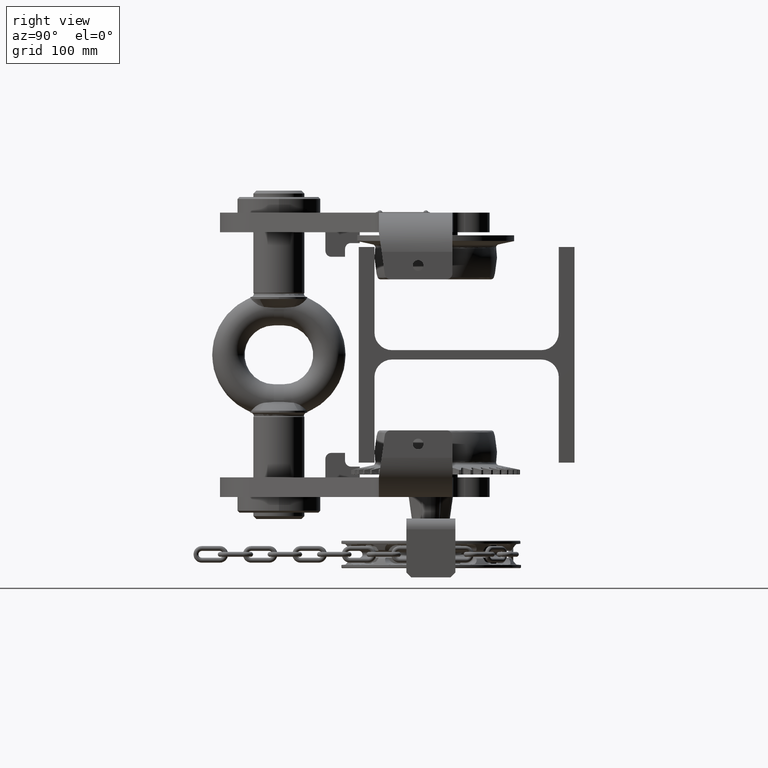
[diagram: clean part render]
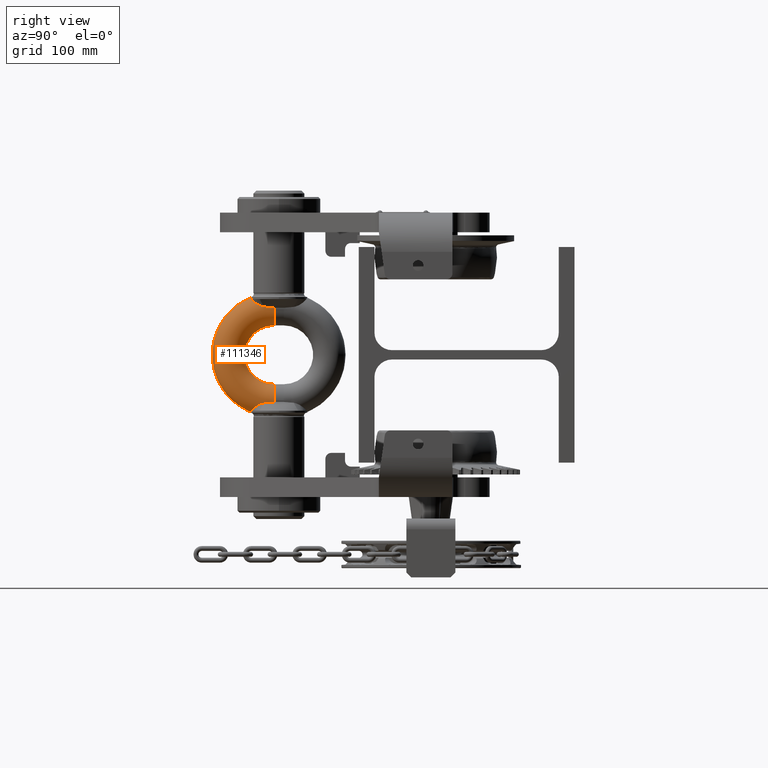
[diagram: same view with one face highlighted and labeled with its STEP entity id]
A machine part, right view. The second image highlights one B-rep face of the part: STEP entity #111346.
In plain terms, the highlighted toroidal blend (fillet) surface has major radius 46.5 mm and minor (blend) radius 16.5 mm.
Its self-contained STEP definition (entity closure, byte-faithful):
#397 = CARTESIAN_POINT ( 'NONE',  ( 6.789701822044540000, -219.6939700852458100, 57.00000000000000000 ) ) ;
#1459 = CARTESIAN_POINT ( 'NONE',  ( 12.62039186310735900, -216.2968772376512200, -53.59638425016680000 ) ) ;
#1618 = CARTESIAN_POINT ( 'NONE',  ( 16.14970968157156900, -206.5730623694667000, -48.85419018527893100 ) ) ;
#2364 = CIRCLE ( 'NONE', #18702, 16.50000000000005000 ) ;
#3519 = CIRCLE ( 'NONE', #89164, 16.50000000000005000 ) ;
#3927 = DIRECTION ( 'NONE',  ( -1.000000000000000000, -2.310146638513944900E-032, 6.939431567305113600E-017 ) ) ;
#4234 = DIRECTION ( 'NONE',  ( -1.000000000000000000, 0.0000000000000000000, 0.0000000000000000000 ) ) ;
#4261 = DIRECTION ( 'NONE',  ( -1.000000000000000000, 0.0000000000000000000, 0.0000000000000000000 ) ) ;
#4678 = DIRECTION ( 'NONE',  ( -9.545527190486497700E-031, 1.000000000000000000, -1.414387360566586700E-014 ) ) ;
#4987 = CARTESIAN_POINT ( 'NONE',  ( 16.14970968157156900, -206.5730623694667000, -48.85419018527893100 ) ) ;
#5476 = CARTESIAN_POINT ( 'NONE',  ( 8.226983262885923400, -219.2627356857551600, 56.40426757459353300 ) ) ;
#5749 = CARTESIAN_POINT ( 'NONE',  ( 2.222275844469823600E-014, -196.4999999999986100, 46.50000000000000000 ) ) ;
#5967 = CARTESIAN_POINT ( 'NONE',  ( 1.576908708710450200E-014, -196.5000000000005700, -46.50000000000000000 ) ) ;
#7451 = CARTESIAN_POINT ( 'NONE',  ( 16.33325860116093900, -203.2304775282657700, 48.42271561141745200 ) ) ;
#8414 = CARTESIAN_POINT ( 'NONE',  ( 16.27217791761420100, -204.9057744790298200, -48.60082342732089000 ) ) ;
#8582 = B_SPLINE_CURVE_WITH_KNOTS ( 'NONE', 3,
 ( #110987, #81446, #112276, #121083, #40117, #50183, #10243, #80588 ),
 .UNSPECIFIED., .F., .F.,
 ( 4, 2, 2, 4 ),
 ( 0.006967397322768841300, 0.01044571445054810800, 0.01218487301443774200, 0.01392403157832737400 ),
 .UNSPECIFIED. ) ;
#9958 = VERTEX_POINT ( 'NONE', #46893 ) ;
#10108 = CARTESIAN_POINT ( 'NONE',  ( 1.162611234090074900, -220.5000000000002000, 58.24946351684271000 ) ) ;
#10243 = CARTESIAN_POINT ( 'NONE',  ( 6.255083864237603200, -219.8227173496876500, -57.20820648636495800 ) ) ;
#10301 = CARTESIAN_POINT ( 'NONE',  ( 16.14970968157157600, -206.5730623694667000, 48.85419018527901600 ) ) ;
#11367 = AXIS2_PLACEMENT_3D ( 'NONE', #64404, #53482, #4261 ) ;
#11575 = CARTESIAN_POINT ( 'NONE',  ( 15.52368704440476500, -210.7567778237649900, -50.11044335773171800 ) ) ;
#12044 = DIRECTION ( 'NONE',  ( -6.939431567305113600E-017, 5.649753126399392400E-064, -1.000000000000000000 ) ) ;
#12420 = B_SPLINE_CURVE_WITH_KNOTS ( 'NONE', 3,
 ( #70226, #10108, #51330, #60574, #20611, #90580, #40824, #397 ),
 .UNSPECIFIED., .F., .F.,
 ( 4, 2, 2, 4 ),
 ( 0.006967397322768840500, 0.01044571445054811300, 0.01218487301443774700, 0.01392403157832738200 ),
 .UNSPECIFIED. ) ;
#12696 = VERTEX_POINT ( 'NONE', #56806 ) ;
#12743 = CARTESIAN_POINT ( 'NONE',  ( 6.789701822044540000, -219.6939700852458100, 57.00000000000000000 ) ) ;
#15188 = CARTESIAN_POINT ( 'NONE',  ( 15.52239812837072500, -210.7618931237415700, 50.11268272700755900 ) ) ;
#15625 = CARTESIAN_POINT ( 'NONE',  ( 15.76393853991892000, -209.6594500412759300, 49.66678633498652600 ) ) ;
#16344 = ORIENTED_EDGE ( 'NONE', *, *, #27997, .T. ) ;
#16490 = CARTESIAN_POINT ( 'NONE',  ( 16.09073594290879300, -207.3741769979857300, 48.97655935730085000 ) ) ;
#18702 = AXIS2_PLACEMENT_3D ( 'NONE', #60788, #71314, #21281 ) ;
#20611 = CARTESIAN_POINT ( 'NONE',  ( 4.599352381570168900, -220.1385134003766700, 57.70260742488639500 ) ) ;
#21281 = DIRECTION ( 'NONE',  ( -1.000000000000000000, 0.0000000000000000000, 0.0000000000000000000 ) ) ;
#22103 = CARTESIAN_POINT ( 'NONE',  ( 15.83172462128895200, -209.2840947546193000, -49.53129400317465800 ) ) ;
#22549 = CARTESIAN_POINT ( 'NONE',  ( 15.76447316238311900, -209.6565579584139100, -49.66572867952372400 ) ) ;
#22595 = CARTESIAN_POINT ( 'NONE',  ( 1.899592276590135800E-014, -196.4999999999999100, 2.774178518932936600E-016 ) ) ;
#23211 = AXIS2_PLACEMENT_3D ( 'NONE', #109486, #86184, #127496 ) ;
#23411 = EDGE_CURVE ( 'NONE', #57007, #96964, #25737, .T. ) ;
#25054 = EDGE_CURVE ( 'NONE', #35068, #109104, #62057, .T. ) ;
#25327 = ORIENTED_EDGE ( 'NONE', *, *, #94996, .T. ) ;
#25540 = ORIENTED_EDGE ( 'NONE', *, *, #129441, .F. ) ;
#25691 = CARTESIAN_POINT ( 'NONE',  ( 16.14970968157157600, -206.5730623694667000, 48.85419018527901600 ) ) ;
#25695 = ORIENTED_EDGE ( 'NONE', *, *, #64427, .F. ) ;
#25737 = B_SPLINE_CURVE_WITH_KNOTS ( 'NONE', 3,
 ( #25691, #16490, #55131, #46263, #15625, #116772, #15188, #96464, #36620, #107015, #45405, #36181, #95615, #85560, #55543, #86833, #46682, #117217, #45845, #56818, #65613, #5476, #35345, #105709 ),
 .UNSPECIFIED., .F., .F.,
 ( 4, 2, 2, 2, 2, 2, 2, 2, 2, 2, 2, 4 ),
 ( 2.881939084222627100E-017, 0.002409449002536025300, 0.003614173503804025000, 0.004818898005072023800, 0.007228347007607941600, 0.008433071508875901800, 0.009637796010143860300, 0.01204724501267983800, 0.01325196951394783300, 0.01445669401521582400, 0.01686614301775181100, 0.01927559202028780000 ),
 .UNSPECIFIED. ) ;
#27214 = DIRECTION ( 'NONE',  ( 1.932206904482438600E-030, -1.000000000000000000, 2.823226364095309500E-014 ) ) ;
#27997 = EDGE_CURVE ( 'NONE', #109104, #57007, #84660, .T. ) ;
#28024 = VERTEX_POINT ( 'NONE', #78234 ) ;
#30471 = CARTESIAN_POINT ( 'NONE',  ( 13.51089859848828200, -215.2638977733029700, -52.73977358315003300 ) ) ;
#31331 = CARTESIAN_POINT ( 'NONE',  ( 11.34520208129740100, -217.4414516651685300, -54.62953950804496400 ) ) ;
#33155 = ORIENTED_EDGE ( 'NONE', *, *, #41522, .T. ) ;
#35068 = VERTEX_POINT ( 'NONE', #77503 ) ;
#35345 = CARTESIAN_POINT ( 'NONE',  ( 7.531583063176368500, -219.5201620654329100, 56.70910042947637200 ) ) ;
#36181 = CARTESIAN_POINT ( 'NONE',  ( 14.08090010373163600, -214.4107620654677600, 52.11621288737714500 ) ) ;
#36620 = CARTESIAN_POINT ( 'NONE',  ( 14.99815633690425400, -212.5137042511241800, 50.95146419734150800 ) ) ;
#39714 = CARTESIAN_POINT ( 'NONE',  ( 8.228052558569491000, -219.2625594879943100, -56.40392126491678200 ) ) ;
#40117 = CARTESIAN_POINT ( 'NONE',  ( 4.599352381570157400, -220.1385134003766700, -57.70260742488640900 ) ) ;
#40824 = CARTESIAN_POINT ( 'NONE',  ( 6.255083864237619200, -219.8227173496875400, 57.20820648636495800 ) ) ;
#41522 = EDGE_CURVE ( 'NONE', #95460, #28024, #8582, .T. ) ;
#44301 = CARTESIAN_POINT ( 'NONE',  ( 1.899592276590135800E-014, -196.4999999999999100, 2.774178518932936600E-016 ) ) ;
#45405 = CARTESIAN_POINT ( 'NONE',  ( 14.41843490700067100, -213.7997126900800700, 51.71288681910630200 ) ) ;
#45845 = CARTESIAN_POINT ( 'NONE',  ( 11.04097899882745400, -217.6549622679523800, 54.82810784448079000 ) ) ;
#46263 = CARTESIAN_POINT ( 'NONE',  ( 15.83134933537299800, -209.2863289760059300, 49.53205681885103900 ) ) ;
#46682 = CARTESIAN_POINT ( 'NONE',  ( 11.86317710511407100, -217.0009010043096400, 54.22865603293378500 ) ) ;
#46893 = CARTESIAN_POINT ( 'NONE',  ( 16.50000000000001800, -196.5000000000005700, -46.49999999999995700 ) ) ;
#48807 = ORIENTED_EDGE ( 'NONE', *, *, #94632, .T. ) ;
#50183 = CARTESIAN_POINT ( 'NONE',  ( 5.710080908976377300, -219.9378878984772400, -57.39001116515129300 ) ) ;
#50916 = B_SPLINE_CURVE_WITH_KNOTS ( 'NONE', 3,
 ( #57601, #8414, #77483, #89375, #119303, #87627 ),
 .UNSPECIFIED., .F., .F.,
 ( 4, 2, 4 ),
 ( 0.0000000000000000000, 0.005056082113876760400, 0.01011216422775352100 ),
 .UNSPECIFIED. ) ;
#51330 = CARTESIAN_POINT ( 'NONE',  ( 2.315721349619341800, -220.4303277780988700, 58.14676997551407600 ) ) ;
#53482 = DIRECTION ( 'NONE',  ( 1.932206904482438600E-030, -1.000000000000000000, 2.823226364095309500E-014 ) ) ;
#55131 = CARTESIAN_POINT ( 'NONE',  ( 16.00775697945102700, -208.1516179651799000, 49.16671881102173100 ) ) ;
#55543 = CARTESIAN_POINT ( 'NONE',  ( 12.86108947759753300, -216.0671371026020300, 53.39142813885421600 ) ) ;
#56041 = AXIS2_PLACEMENT_3D ( 'NONE', #44301, #3927, #86129 ) ;
#56229 = CARTESIAN_POINT ( 'NONE',  ( 16.41022114154717200, -199.8710428577474800, 48.15709499626949300 ) ) ;
#56806 = CARTESIAN_POINT ( 'NONE',  ( 2.303810443280035300E-014, -220.5000000000001400, 58.24946351684270200 ) ) ;
#56818 = CARTESIAN_POINT ( 'NONE',  ( 10.16253130831773500, -218.2683548030102300, 55.39900076942999600 ) ) ;
#57007 = VERTEX_POINT ( 'NONE', #10301 ) ;
#57362 = CARTESIAN_POINT ( 'NONE',  ( 1.495374111465345200E-014, -220.5000000000001400, -58.24946351684270200 ) ) ;
#57601 = CARTESIAN_POINT ( 'NONE',  ( 16.14970968157156900, -206.5730623694667000, -48.85419018527893100 ) ) ;
#59877 = CARTESIAN_POINT ( 'NONE',  ( 6.789701822044479600, -219.6939700852455800, -57.00000000000000000 ) ) ;
#59893 = VERTEX_POINT ( 'NONE', #1618 ) ;
#60428 = EDGE_CURVE ( 'NONE', #28024, #59893, #108583, .T. ) ;
#60574 = CARTESIAN_POINT ( 'NONE',  ( 4.030948684565530000, -220.2242590919545600, 57.83382278780548100 ) ) ;
#60788 = CARTESIAN_POINT ( 'NONE',  ( 1.576908708710450200E-014, -196.5000000000005700, -46.50000000000000000 ) ) ;
#62057 = CIRCLE ( 'NONE', #11367, 16.50000000000005000 ) ;
#64058 = EDGE_CURVE ( 'NONE', #9958, #94991, #117488, .T. ) ;
#64404 = CARTESIAN_POINT ( 'NONE',  ( 2.222275844469823600E-014, -196.4999999999986100, 46.50000000000000000 ) ) ;
#64427 = EDGE_CURVE ( 'NONE', #123648, #9958, #2364, .T. ) ;
#65545 = CARTESIAN_POINT ( 'NONE',  ( 16.00779564519321600, -208.1510085656619800, -49.16660984428261800 ) ) ;
#65613 = CARTESIAN_POINT ( 'NONE',  ( 9.542474760975427000, -218.6366440345708500, 55.74942739138110400 ) ) ;
#66682 = CARTESIAN_POINT ( 'NONE',  ( 16.43063562197325200, -196.5000000000005700, -48.01136132607175700 ) ) ;
#68040 = CARTESIAN_POINT ( 'NONE',  ( 16.27217791761426100, -204.9057744790295600, 48.60082342732089000 ) ) ;
#70226 = CARTESIAN_POINT ( 'NONE',  ( 2.303810443280035300E-014, -220.5000000000001400, 58.24946351684270200 ) ) ;
#70412 = CARTESIAN_POINT ( 'NONE',  ( 10.47097514471096100, -218.0534991549014300, -55.19895987007701900 ) ) ;
#71314 = DIRECTION ( 'NONE',  ( -9.545527190486497700E-031, 1.000000000000000000, -1.414387360566586700E-014 ) ) ;
#71721 = CARTESIAN_POINT ( 'NONE',  ( 13.29989869337613800, -215.5356464809469800, -52.95500724111310100 ) ) ;
#72155 = VERTEX_POINT ( 'NONE', #98378 ) ;
#77483 = CARTESIAN_POINT ( 'NONE',  ( 16.33325860116091000, -203.2304775282663600, -48.42271561141744500 ) ) ;
#77503 = CARTESIAN_POINT ( 'NONE',  ( 16.50000000000002100, -196.4999999999986100, 46.50000000000004300 ) ) ;
#77515 = EDGE_LOOP ( 'NONE', ( #25540, #33155, #116720, #48807, #84040, #25695, #25327, #119535, #124004, #16344, #106905, #87448 ) ) ;
#78234 = CARTESIAN_POINT ( 'NONE',  ( 6.789701822044479600, -219.6939700852455800, -57.00000000000000000 ) ) ;
#80588 = CARTESIAN_POINT ( 'NONE',  ( 6.789701822044479600, -219.6939700852455800, -57.00000000000000000 ) ) ;
#80630 = CARTESIAN_POINT ( 'NONE',  ( 11.88198488525443400, -217.0037736557662200, -54.22649970755972500 ) ) ;
#81446 = CARTESIAN_POINT ( 'NONE',  ( 1.162611234090066300, -220.5000000000002000, -58.24946351684271000 ) ) ;
#81484 = CARTESIAN_POINT ( 'NONE',  ( 9.541050357058100700, -218.6182330936537700, -55.73941017199114600 ) ) ;
#81925 = CARTESIAN_POINT ( 'NONE',  ( 15.03840813540673700, -212.5426066188140600, -50.92307947960818400 ) ) ;
#82804 = CARTESIAN_POINT ( 'NONE',  ( 15.61060803828191500, -210.3922853047753300, -49.95506384522680300 ) ) ;
#83496 = TOROIDAL_SURFACE ( 'NONE', #123202, 46.50000000000000000, 16.50000000000000000 ) ;
#83719 = DIRECTION ( 'NONE',  ( -1.000000000000000000, -2.310146638513944900E-032, 6.939431567305113600E-017 ) ) ;
#84040 = ORIENTED_EDGE ( 'NONE', *, *, #64058, .F. ) ;
#84660 = B_SPLINE_CURVE_WITH_KNOTS ( 'NONE', 3,
 ( #127553, #127985, #56229, #7451, #68040, #117477 ),
 .UNSPECIFIED., .F., .F.,
 ( 4, 2, 4 ),
 ( 0.0000000000000000000, 0.005056082113877743100, 0.01011216422775548600 ),
 .UNSPECIFIED. ) ;
#85215 = AXIS2_PLACEMENT_3D ( 'NONE', #5967, #4678, #4234 ) ;
#85560 = CARTESIAN_POINT ( 'NONE',  ( 13.30570346881364700, -215.5580710833978300, 52.95966035064176200 ) ) ;
#86129 = DIRECTION ( 'NONE',  ( 6.939431567305117300E-017, 0.0000000000000000000, 1.000000000000000000 ) ) ;
#86184 = DIRECTION ( 'NONE',  ( -1.000000000000000000, -2.310146638513944900E-032, 6.939431567305113600E-017 ) ) ;
#86833 = CARTESIAN_POINT ( 'NONE',  ( 12.12155273087840100, -216.7740795402925200, 54.02184071569093500 ) ) ;
#87448 = ORIENTED_EDGE ( 'NONE', *, *, #109951, .F. ) ;
#87627 = CARTESIAN_POINT ( 'NONE',  ( 16.43063562197325200, -196.5000000000005700, -48.01136132607175700 ) ) ;
#89164 = AXIS2_PLACEMENT_3D ( 'NONE', #5749, #27214, #97593 ) ;
#89375 = CARTESIAN_POINT ( 'NONE',  ( 16.41022114154715400, -199.8710428577486200, -48.15709499626947100 ) ) ;
#89569 = EDGE_CURVE ( 'NONE', #72155, #35068, #3519, .T. ) ;
#89892 = CIRCLE ( 'NONE', #56041, 63.00000000000000000 ) ;
#90580 = CARTESIAN_POINT ( 'NONE',  ( 5.710080908976388900, -219.9378878984772400, 57.39001116515127900 ) ) ;
#90768 = CARTESIAN_POINT ( 'NONE',  ( 12.85498062700984400, -216.0516255899331100, -53.38296045857282500 ) ) ;
#91632 = CARTESIAN_POINT ( 'NONE',  ( 10.16649636255474200, -218.2501418079608300, -55.38407336389800400 ) ) ;
#94632 = EDGE_CURVE ( 'NONE', #59893, #94991, #50916, .T. ) ;
#94991 = VERTEX_POINT ( 'NONE', #66682 ) ;
#94996 = EDGE_CURVE ( 'NONE', #123648, #72155, #124806, .T. ) ;
#95460 = VERTEX_POINT ( 'NONE', #57362 ) ;
#95615 = CARTESIAN_POINT ( 'NONE',  ( 13.89661665512560700, -214.7083405397440900, 52.32551736131431100 ) ) ;
#96464 = CARTESIAN_POINT ( 'NONE',  ( 15.23141514536814800, -211.8315885877947600, 50.59971117742656300 ) ) ;
#96964 = VERTEX_POINT ( 'NONE', #12743 ) ;
#97593 = DIRECTION ( 'NONE',  ( -1.000000000000000000, 0.0000000000000000000, 0.0000000000000000000 ) ) ;
#98378 = CARTESIAN_POINT ( 'NONE',  ( 2.101658998449450000E-014, -196.4999999999990900, 30.00000000000000000 ) ) ;
#100876 = CARTESIAN_POINT ( 'NONE',  ( 14.49674230936784800, -213.8416792911704600, -51.68017325012478100 ) ) ;
#103942 = CARTESIAN_POINT ( 'NONE',  ( 16.43063562197326600, -196.4999999999985800, 48.01136132607177800 ) ) ;
#105709 = CARTESIAN_POINT ( 'NONE',  ( 6.789701822044540000, -219.6939700852458100, 57.00000000000000000 ) ) ;
#106905 = ORIENTED_EDGE ( 'NONE', *, *, #23411, .T. ) ;
#107015 = CARTESIAN_POINT ( 'NONE',  ( 14.57284169700260700, -213.4847800982709600, 51.51764444182782700 ) ) ;
#107501 = CARTESIAN_POINT ( 'NONE',  ( 2.101658998449448200E-014, -196.5000000000003400, -30.00000000000000000 ) ) ;
#108583 = B_SPLINE_CURVE_WITH_KNOTS ( 'NONE', 3,
 ( #59877, #121113, #39714, #110567, #81484, #91632, #70412, #31331, #80630, #1459, #90768, #71721, #30471, #100876, #81925, #11575, #82804, #22549, #22103, #65545, #115404, #4987 ),
 .UNSPECIFIED., .F., .F.,
 ( 4, 2, 2, 2, 2, 2, 2, 2, 2, 2, 4 ),
 ( 2.602085213965210600E-018, 0.002407351298757800000, 0.003611026948136694400, 0.004814702597515588800, 0.007222053896273363700, 0.008425729545652259300, 0.009629405195031151600, 0.01444410779254656400, 0.01564778344192547000, 0.01685145909130437300, 0.01925881039006226800 ),
 .UNSPECIFIED. ) ;
#109104 = VERTEX_POINT ( 'NONE', #103942 ) ;
#109486 = CARTESIAN_POINT ( 'NONE',  ( 2.101658998449449700E-014, -196.4999999999999100, 2.774178518932935100E-016 ) ) ;
#109951 = EDGE_CURVE ( 'NONE', #12696, #96964, #12420, .T. ) ;
#110268 = FACE_OUTER_BOUND ( 'NONE', #77515, .T. ) ;
#110567 = CARTESIAN_POINT ( 'NONE',  ( 9.219653869752189500, -218.7901185588438900, -55.91003089512503300 ) ) ;
#110987 = CARTESIAN_POINT ( 'NONE',  ( 1.495374111465345200E-014, -220.5000000000001400, -58.24946351684270200 ) ) ;
#111346 = ADVANCED_FACE ( 'NONE', ( #110268 ), #83496, .T. ) ;
#112276 = CARTESIAN_POINT ( 'NONE',  ( 2.315721349619332500, -220.4303277780988700, -58.14676997551406900 ) ) ;
#115404 = CARTESIAN_POINT ( 'NONE',  ( 16.09073587124085600, -207.3741779715416000, -48.97655950601009100 ) ) ;
#116720 = ORIENTED_EDGE ( 'NONE', *, *, #60428, .T. ) ;
#116772 = CARTESIAN_POINT ( 'NONE',  ( 15.60961632101515100, -210.3966882880849900, 49.95687587011568800 ) ) ;
#117217 = CARTESIAN_POINT ( 'NONE',  ( 11.32339452381547700, -217.4412280998597600, 54.63134564717972100 ) ) ;
#117477 = CARTESIAN_POINT ( 'NONE',  ( 16.14970968157157600, -206.5730623694667000, 48.85419018527901600 ) ) ;
#117488 = CIRCLE ( 'NONE', #85215, 16.50000000000005000 ) ;
#119303 = CARTESIAN_POINT ( 'NONE',  ( 16.42524475720244600, -198.1868489510161700, -48.06996765217581900 ) ) ;
#119535 = ORIENTED_EDGE ( 'NONE', *, *, #89569, .T. ) ;
#121083 = CARTESIAN_POINT ( 'NONE',  ( 4.030948684565515800, -220.2242590919545600, -57.83382278780547400 ) ) ;
#121113 = CARTESIAN_POINT ( 'NONE',  ( 7.530738171597066700, -219.5203600067261200, -56.70943172050237300 ) ) ;
#123202 = AXIS2_PLACEMENT_3D ( 'NONE', #22595, #83719, #12044 ) ;
#123648 = VERTEX_POINT ( 'NONE', #107501 ) ;
#124004 = ORIENTED_EDGE ( 'NONE', *, *, #25054, .T. ) ;
#124806 = CIRCLE ( 'NONE', #23211, 30.00000000000000000 ) ;
#127496 = DIRECTION ( 'NONE',  ( 6.939431567305109900E-017, 0.0000000000000000000, 1.000000000000000000 ) ) ;
#127553 = CARTESIAN_POINT ( 'NONE',  ( 16.43063562197326600, -196.4999999999985800, 48.01136132607177800 ) ) ;
#127985 = CARTESIAN_POINT ( 'NONE',  ( 16.42524475720244600, -198.1868489510144700, 48.06996765217581200 ) ) ;
#129441 = EDGE_CURVE ( 'NONE', #95460, #12696, #89892, .T. ) ;